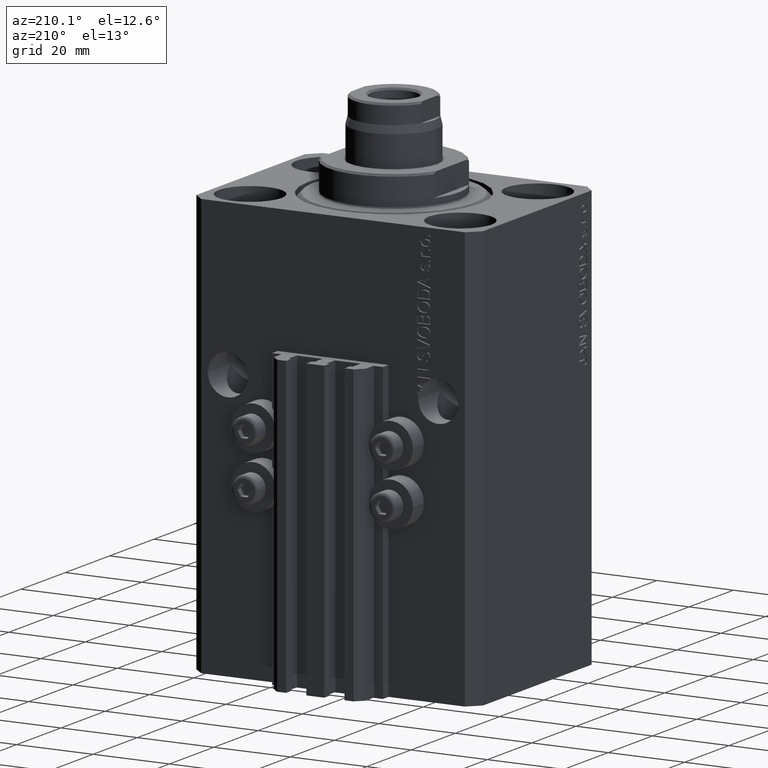
[diagram: clean part render]
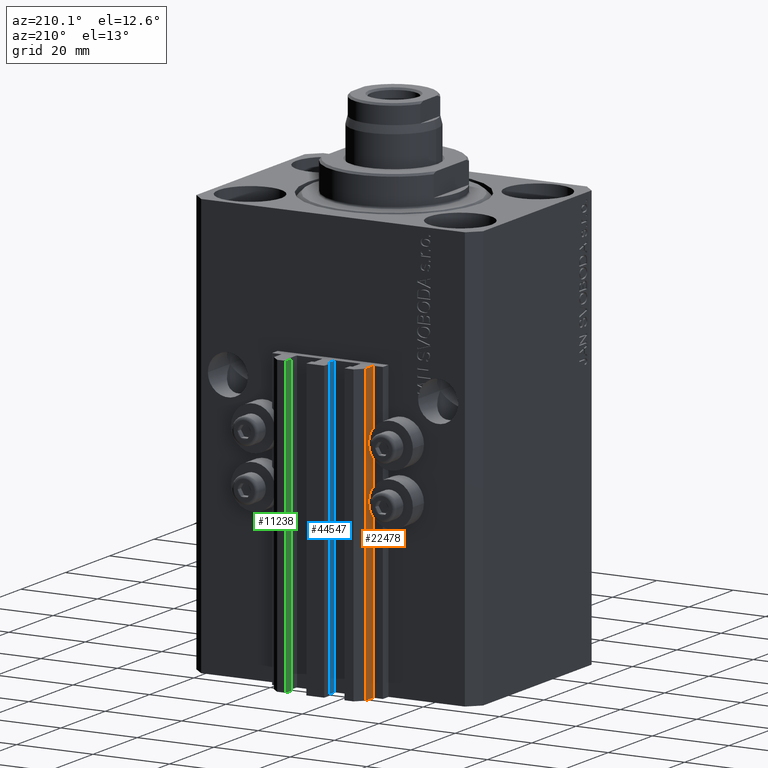
[diagram: same view with three faces highlighted in distinct colors, each labeled with its STEP entity id]
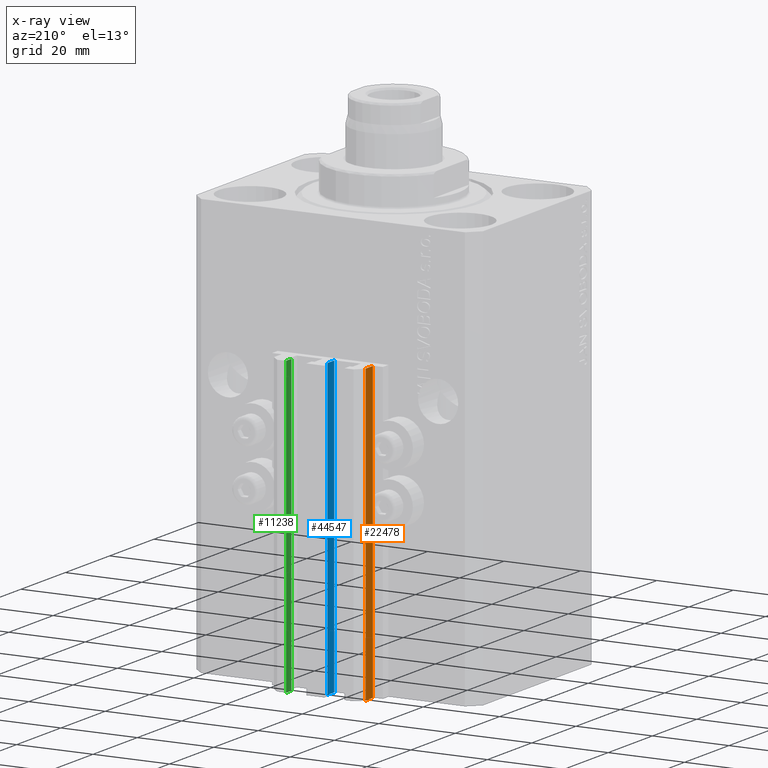
[diagram: x-ray of the same camera — body ghosted, the three highlighted faces saturated]
A machine part, auxiliary view with three faces highlighted in distinct colors.
The next image is the same camera in x-ray (body ghosted, the three faces saturated) — at least one of them is partly hidden behind the body in this view.
Their STEP definitions:

[orange] entity #22478 — the highlighted planar face has unit normal (-1, 0, 0).
#2042 = LINE ( 'NONE', #2283, #33569 ) ;
#2283 = CARTESIAN_POINT ( 'NONE',  ( -12.00000000000000000, 33.49999999999998579, -110.0000000000000000 ) ) ;
#2689 = DIRECTION ( 'NONE',  ( 0.000000000000000000, 0.000000000000000000, 1.000000000000000000 ) ) ;
#3062 = ORIENTED_EDGE ( 'NONE', *, *, #36994, .F. ) ;
#4326 = VERTEX_POINT ( 'NONE', #36538 ) ;
#9236 = EDGE_CURVE ( 'NONE', #13489, #33197, #19694, .T. ) ;
#9596 = PLANE ( 'NONE',  #36425 ) ;
#10311 = DIRECTION ( 'NONE',  ( -1.000000000000000000, 0.000000000000000000, 0.000000000000000000 ) ) ;
#12267 = ORIENTED_EDGE ( 'NONE', *, *, #9236, .F. ) ;
#13489 = VERTEX_POINT ( 'NONE', #23274 ) ;
#13866 = CARTESIAN_POINT ( 'NONE',  ( -12.00000000000000000, 33.49999999999998579, -110.0000000000000000 ) ) ;
#14984 = CARTESIAN_POINT ( 'NONE',  ( -12.00000000000000000, 30.19999999999999218, -33.00000000000000000 ) ) ;
#17669 = ORIENTED_EDGE ( 'NONE', *, *, #23869, .T. ) ;
#18318 = VECTOR ( 'NONE', #40529, 1000.000000000000000 ) ;
#19694 = LINE ( 'NONE', #37686, #39918 ) ;
#21201 = FACE_OUTER_BOUND ( 'NONE', #43207, .T. ) ;
#22238 = ORIENTED_EDGE ( 'NONE', *, *, #32268, .T. ) ;
#22478 = ADVANCED_FACE ( 'NONE', ( #21201 ), #9596, .T. ) ;
#23274 = CARTESIAN_POINT ( 'NONE',  ( -12.00000000000000000, 33.49999999999998579, -33.00000000000000000 ) ) ;
#23869 = EDGE_CURVE ( 'NONE', #23951, #33197, #45019, .T. ) ;
#23951 = VERTEX_POINT ( 'NONE', #31749 ) ;
#24452 = LINE ( 'NONE', #28704, #28552 ) ;
#26557 = CARTESIAN_POINT ( 'NONE',  ( -12.00000000000000000, 30.19999999999999218, -110.0000000000000000 ) ) ;
#28552 = VECTOR ( 'NONE', #2689, 1000.000000000000000 ) ;
#28704 = CARTESIAN_POINT ( 'NONE',  ( -12.00000000000000000, 33.49999999999998579, -110.0000000000000000 ) ) ;
#31749 = CARTESIAN_POINT ( 'NONE',  ( -12.00000000000000000, 30.19999999999999218, -110.0000000000000000 ) ) ;
#32268 = EDGE_CURVE ( 'NONE', #4326, #23951, #2042, .T. ) ;
#33197 = VERTEX_POINT ( 'NONE', #14984 ) ;
#33569 = VECTOR ( 'NONE', #46073, 1000.000000000000000 ) ;
#36425 = AXIS2_PLACEMENT_3D ( 'NONE', #13866, #10311, #42278 ) ;
#36538 = CARTESIAN_POINT ( 'NONE',  ( -12.00000000000000000, 33.49999999999998579, -110.0000000000000000 ) ) ;
#36994 = EDGE_CURVE ( 'NONE', #4326, #13489, #24452, .T. ) ;
#37686 = CARTESIAN_POINT ( 'NONE',  ( -12.00000000000000000, 33.49999999999998579, -33.00000000000000000 ) ) ;
#39918 = VECTOR ( 'NONE', #41242, 1000.000000000000000 ) ;
#40529 = DIRECTION ( 'NONE',  ( 0.000000000000000000, 0.000000000000000000, 1.000000000000000000 ) ) ;
#41242 = DIRECTION ( 'NONE',  ( 0.000000000000000000, -1.000000000000000000, 0.000000000000000000 ) ) ;
#42278 = DIRECTION ( 'NONE',  ( 0.000000000000000000, 0.000000000000000000, 1.000000000000000000 ) ) ;
#43207 = EDGE_LOOP ( 'NONE', ( #12267, #3062, #22238, #17669 ) ) ;
#45019 = LINE ( 'NONE', #26557, #18318 ) ;
#46073 = DIRECTION ( 'NONE',  ( 0.000000000000000000, -1.000000000000000000, 0.000000000000000000 ) ) ;

[blue] entity #44547 — the highlighted planar face has unit normal (-1, 0, 0).
#243 = LINE ( 'NONE', #14671, #31021 ) ;
#1366 = DIRECTION ( 'NONE',  ( 0.000000000000000000, 0.000000000000000000, 1.000000000000000000 ) ) ;
#1470 = VECTOR ( 'NONE', #1366, 1000.000000000000000 ) ;
#3914 = DIRECTION ( 'NONE',  ( -6.776263578034378061E-17, -1.000000000000000000, 0.000000000000000000 ) ) ;
#4020 = DIRECTION ( 'NONE',  ( 0.000000000000000000, 0.000000000000000000, 1.000000000000000000 ) ) ;
#4219 = LINE ( 'NONE', #29997, #1470 ) ;
#6638 = DIRECTION ( 'NONE',  ( -6.776263578034378061E-17, -1.000000000000000000, 0.000000000000000000 ) ) ;
#6758 = EDGE_LOOP ( 'NONE', ( #10655, #19443, #13373, #33170 ) ) ;
#6821 = VERTEX_POINT ( 'NONE', #25789 ) ;
#9473 = CARTESIAN_POINT ( 'NONE',  ( -1.600000000000000533, 32.90000000000001279, -110.0000000000000000 ) ) ;
#9705 = DIRECTION ( 'NONE',  ( -1.000000000000000000, 6.776263578034378061E-17, 0.000000000000000000 ) ) ;
#10655 = ORIENTED_EDGE ( 'NONE', *, *, #46078, .F. ) ;
#11003 = CARTESIAN_POINT ( 'NONE',  ( -1.600000000000000533, 32.90000000000001279, -33.00000000000000000 ) ) ;
#12479 = EDGE_CURVE ( 'NONE', #35554, #29109, #4219, .T. ) ;
#13181 = EDGE_CURVE ( 'NONE', #35554, #37636, #43547, .T. ) ;
#13373 = ORIENTED_EDGE ( 'NONE', *, *, #13181, .T. ) ;
#14671 = CARTESIAN_POINT ( 'NONE',  ( -1.600000000000000755, 29.69999999999999929, -110.0000000000000000 ) ) ;
#18219 = CARTESIAN_POINT ( 'NONE',  ( -1.600000000000000533, 32.90000000000001279, -110.0000000000000000 ) ) ;
#18258 = CARTESIAN_POINT ( 'NONE',  ( -1.599999999999997868, 32.90000000000001279, -33.00000000000000000 ) ) ;
#18878 = VECTOR ( 'NONE', #3914, 1000.000000000000000 ) ;
#18958 = EDGE_CURVE ( 'NONE', #37636, #6821, #243, .T. ) ;
#19443 = ORIENTED_EDGE ( 'NONE', *, *, #12479, .F. ) ;
#20591 = FACE_OUTER_BOUND ( 'NONE', #6758, .T. ) ;
#25789 = CARTESIAN_POINT ( 'NONE',  ( -1.600000000000000755, 29.69999999999999929, -33.00000000000000000 ) ) ;
#27424 = CARTESIAN_POINT ( 'NONE',  ( -1.600000000000000755, 29.69999999999999929, -110.0000000000000000 ) ) ;
#29004 = LINE ( 'NONE', #11003, #18878 ) ;
#29109 = VERTEX_POINT ( 'NONE', #18258 ) ;
#29997 = CARTESIAN_POINT ( 'NONE',  ( -1.599999999999997868, 32.90000000000001279, -110.0000000000000000 ) ) ;
#30847 = VECTOR ( 'NONE', #35970, 1000.000000000000000 ) ;
#31021 = VECTOR ( 'NONE', #4020, 1000.000000000000000 ) ;
#33170 = ORIENTED_EDGE ( 'NONE', *, *, #18958, .T. ) ;
#35554 = VERTEX_POINT ( 'NONE', #45461 ) ;
#35970 = DIRECTION ( 'NONE',  ( -6.776263578034378061E-17, -1.000000000000000000, 0.000000000000000000 ) ) ;
#37636 = VERTEX_POINT ( 'NONE', #27424 ) ;
#43547 = LINE ( 'NONE', #18219, #30847 ) ;
#44547 = ADVANCED_FACE ( 'NONE', ( #20591 ), #46175, .T. ) ;
#45461 = CARTESIAN_POINT ( 'NONE',  ( -1.599999999999997868, 32.90000000000001279, -110.0000000000000000 ) ) ;
#46078 = EDGE_CURVE ( 'NONE', #29109, #6821, #29004, .T. ) ;
#46175 = PLANE ( 'NONE',  #46807 ) ;
#46807 = AXIS2_PLACEMENT_3D ( 'NONE', #9473, #9705, #6638 ) ;

[green] entity #11238 — the highlighted planar face has unit normal (-1, 0, 0).
#314 = DIRECTION ( 'NONE',  ( -1.000000000000000000, 0.000000000000000000, 0.000000000000000000 ) ) ;
#510 = EDGE_CURVE ( 'NONE', #35378, #18568, #15630, .T. ) ;
#4189 = VERTEX_POINT ( 'NONE', #44464 ) ;
#4791 = VECTOR ( 'NONE', #32681, 1000.000000000000000 ) ;
#5273 = LINE ( 'NONE', #30818, #37915 ) ;
#5953 = CARTESIAN_POINT ( 'NONE',  ( 7.649999999999998579, 35.50000000000001421, -110.0000000000000000 ) ) ;
#6713 = AXIS2_PLACEMENT_3D ( 'NONE', #7641, #314, #10954 ) ;
#7641 = CARTESIAN_POINT ( 'NONE',  ( 7.649999999999998579, 35.50000000000001421, -110.0000000000000000 ) ) ;
#7831 = CARTESIAN_POINT ( 'NONE',  ( 7.649999999999998579, 35.50000000000001421, -33.00000000000000000 ) ) ;
#10954 = DIRECTION ( 'NONE',  ( 0.000000000000000000, 0.000000000000000000, 1.000000000000000000 ) ) ;
#11238 = ADVANCED_FACE ( 'NONE', ( #39828 ), #25624, .T. ) ;
#12850 = LINE ( 'NONE', #41736, #28648 ) ;
#13084 = DIRECTION ( 'NONE',  ( 0.000000000000000000, -1.000000000000000000, 0.000000000000000000 ) ) ;
#13931 = ORIENTED_EDGE ( 'NONE', *, *, #510, .F. ) ;
#15630 = LINE ( 'NONE', #7831, #4791 ) ;
#16624 = DIRECTION ( 'NONE',  ( 0.000000000000000000, 0.000000000000000000, 1.000000000000000000 ) ) ;
#18568 = VERTEX_POINT ( 'NONE', #30866 ) ;
#21479 = ORIENTED_EDGE ( 'NONE', *, *, #21656, .T. ) ;
#21656 = EDGE_CURVE ( 'NONE', #4189, #18568, #5273, .T. ) ;
#21713 = ORIENTED_EDGE ( 'NONE', *, *, #40131, .T. ) ;
#24527 = EDGE_CURVE ( 'NONE', #32823, #35378, #29532, .T. ) ;
#25624 = PLANE ( 'NONE',  #6713 ) ;
#27405 = VECTOR ( 'NONE', #34015, 1000.000000000000000 ) ;
#28318 = ORIENTED_EDGE ( 'NONE', *, *, #24527, .F. ) ;
#28648 = VECTOR ( 'NONE', #13084, 1000.000000000000000 ) ;
#29532 = LINE ( 'NONE', #44440, #27405 ) ;
#30818 = CARTESIAN_POINT ( 'NONE',  ( 7.649999999999998579, 33.10000000000001563, -110.0000000000000000 ) ) ;
#30866 = CARTESIAN_POINT ( 'NONE',  ( 7.649999999999998579, 33.10000000000001563, -33.00000000000000000 ) ) ;
#32681 = DIRECTION ( 'NONE',  ( 0.000000000000000000, -1.000000000000000000, 0.000000000000000000 ) ) ;
#32823 = VERTEX_POINT ( 'NONE', #5953 ) ;
#34015 = DIRECTION ( 'NONE',  ( 0.000000000000000000, 0.000000000000000000, 1.000000000000000000 ) ) ;
#35378 = VERTEX_POINT ( 'NONE', #36315 ) ;
#36315 = CARTESIAN_POINT ( 'NONE',  ( 7.649999999999998579, 35.50000000000001421, -33.00000000000000000 ) ) ;
#37915 = VECTOR ( 'NONE', #16624, 1000.000000000000000 ) ;
#39828 = FACE_OUTER_BOUND ( 'NONE', #45727, .T. ) ;
#40131 = EDGE_CURVE ( 'NONE', #32823, #4189, #12850, .T. ) ;
#41736 = CARTESIAN_POINT ( 'NONE',  ( 7.649999999999998579, 35.50000000000001421, -110.0000000000000000 ) ) ;
#44440 = CARTESIAN_POINT ( 'NONE',  ( 7.649999999999998579, 35.50000000000001421, -110.0000000000000000 ) ) ;
#44464 = CARTESIAN_POINT ( 'NONE',  ( 7.649999999999998579, 33.10000000000001563, -110.0000000000000000 ) ) ;
#45727 = EDGE_LOOP ( 'NONE', ( #13931, #28318, #21713, #21479 ) ) ;